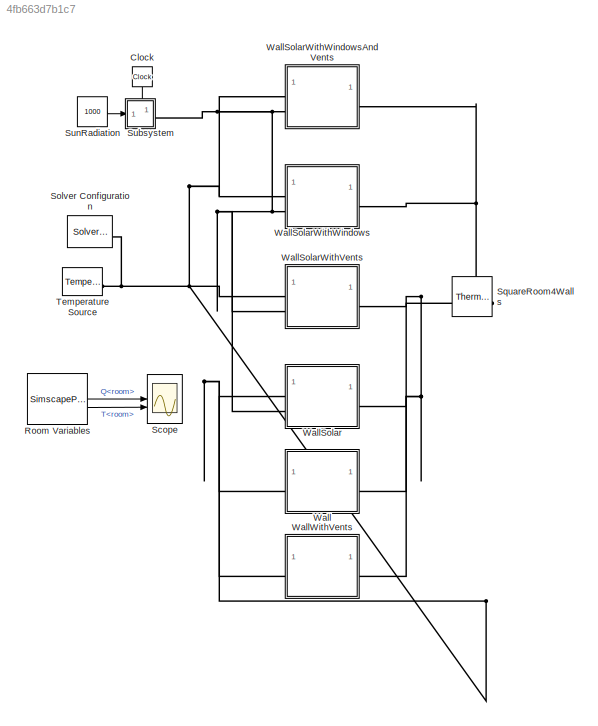
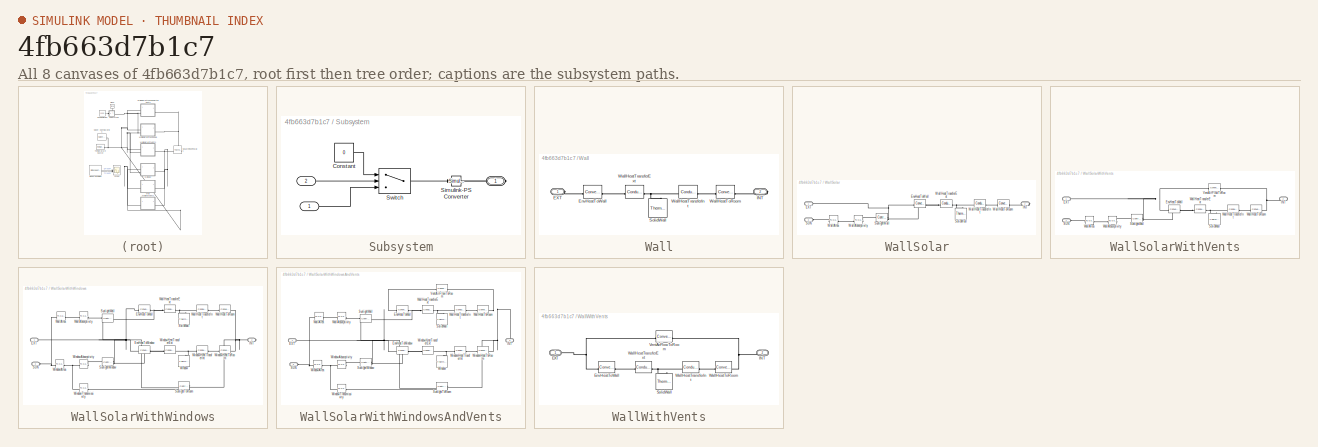
[diagram: thumbnail index - all 8 canvases of the model, root first then tree order]
MODEL slx_4fb663d7b1c7
KIND model
CONFIG AbsTol = 1e-3
CONFIG EnableMultiTasking = off
CONFIG FixedStep = 3600
CONFIG MaxStep = 3
CONFIG MinStep = auto
CONFIG PreLoadFcn = WallModelParams
CONFIG RelTol = 1e-3
CONFIG SampleTimeConstraint = Unconstrained
CONFIG SolverName = daessc
CONFIG StartTime = 0.0
CONFIG StopTime = 12*3600
BLOCK [Clock] Clock
  NameLocation = left
BLOCK [SimscapeProbe] Room Variables
  BoundBlock = 26
  Variables = {Q, T}
BLOCK [Scope] Scope
  Floating = off
  NumInputPorts = 2
  ScopeSpecificationString = Simulink.scopes.TimeScopeBlockCfg('CurrentConfiguration', extmgr.ConfigurationSet(extmgr.Configuration('Core','General UI',true),extmgr.Configuration('Core','Source UI',true),extmgr.Configuration('Sources','WiredSimulink',true),extmgr.Configuration('Visuals','Time Domain',true,'SerializedDisplays',{struct('MinYLimReal','-13999.51291','MaxYLimReal','14055.50143','YLabelReal','','MinYLimMag','   0.0...<+2184ch>
BLOCK [Reference] Solver Configuration  REF=nesl_utility/Solver
Configuration
  NameLocation = top
  SourceBlock = nesl_utility/Solver\nConfiguration
  SourceType = Solver\nConfiguration
BLOCK [Reference] SquareRoom4Walls  REF=fl_lib/Thermal/Thermal Elements/Thermal Mass
  SourceBlock = fl_lib/Thermal/Thermal Elements/Thermal Mass
  SourceType = Thermal Mass
BLOCK [SubSystem] Subsystem
  PortSchema = {"entries":[{"content":{"sides":[{"content":{"connectorIds":["In1"]},"type":"ConnectorPlacement.EquallySpacedRectSide","uuid":"3d46a215-694f-4d20-bc42-8059ad6c23bd"},{"content":{"connectorIds":["RConn1"],"side":"RIGHT"},"type":"ConnectorPlacement.EquallySpacedRectSide","uuid":"4734f55e-0044-4fb6-ae62-80969ebadacf"},{"content":{"connectorIds":["In2"],"side":"TOP"},"type":"ConnectorPlacement.Equally...<+247ch>
BLOCK [Inport] Subsystem/ 
  Port = 2
BLOCK [Inport] Subsystem/  
BLOCK [PMIOPort] Subsystem/   
  Side = Right
BLOCK [Constant] Subsystem/Constant
  Value = 0
BLOCK [Reference] Subsystem/Simulink-PS Converter  REF=nesl_utility/Simulink-PS
Converter
  SourceBlock = nesl_utility/Simulink-PS\nConverter
  SourceType = Simulink-PS\nConverter
BLOCK [Switch] Subsystem/Switch
  Criteria = u2 > Threshold
  InputSameDT = off
  SaturateOnIntegerOverflow = off
  Threshold = 8*3600
BLOCK [Constant] SunRadiation
  Value = 1000
BLOCK [Reference] Temperature Source  REF=fl_lib/Thermal/Thermal Sources/Temperature Source
  SourceBlock = fl_lib/Thermal/Thermal Sources/Temperature Source
  SourceType = Temperature Source
BLOCK [SubSystem] Wall
BLOCK [PMIOPort] Wall/EXT
  NameLocation = top
  Side = Left
BLOCK [Reference] Wall/EnvHeatToWall  REF=fl_lib/Thermal/Thermal Elements/Convective Heat
Transfer
  SourceBlock = fl_lib/Thermal/Thermal Elements/Convective Heat\nTransfer
  SourceType = Convective Heat\nTransfer
BLOCK [PMIOPort] Wall/INT
  NameLocation = top
  Port = 2
  Side = Right
BLOCK [Reference] Wall/SolidWall  REF=fl_lib/Thermal/Thermal Elements/Thermal Mass
  SourceBlock = fl_lib/Thermal/Thermal Elements/Thermal Mass
  SourceType = Thermal Mass
BLOCK [Reference] Wall/WallHeatToRoom  REF=fl_lib/Thermal/Thermal Elements/Convective Heat
Transfer
  SourceBlock = fl_lib/Thermal/Thermal Elements/Convective Heat\nTransfer
  SourceType = Convective Heat\nTransfer
BLOCK [Reference] Wall/WallHeatTransferExt  REF=fl_lib/Thermal/Thermal Elements/Conductive Heat
Transfer
  NameLocation = top
  SourceBlock = fl_lib/Thermal/Thermal Elements/Conductive Heat\nTransfer
  SourceType = Conductive Heat\nTransfer
BLOCK [Reference] Wall/WallHeatTransferInt  REF=fl_lib/Thermal/Thermal Elements/Conductive Heat
Transfer
  NameLocation = top
  SourceBlock = fl_lib/Thermal/Thermal Elements/Conductive Heat\nTransfer
  SourceType = Conductive Heat\nTransfer
BLOCK [SubSystem] WallSolar
BLOCK [PMIOPort] WallSolar/EXT
  NameLocation = top
  Side = Left
BLOCK [Reference] WallSolar/EnvHeatToWall  REF=fl_lib/Thermal/Thermal Elements/Convective Heat
Transfer
  SourceBlock = fl_lib/Thermal/Thermal Elements/Convective Heat\nTransfer
  SourceType = Convective Heat\nTransfer
BLOCK [PMIOPort] WallSolar/INT
  NameLocation = top
  Port = 2
  Side = Right
BLOCK [PMIOPort] WallSolar/SUN
  NameLocation = top
  Port = 3
  Side = Left
BLOCK [Reference] WallSolar/SolidWall  REF=fl_lib/Thermal/Thermal Elements/Thermal Mass
  SourceBlock = fl_lib/Thermal/Thermal Elements/Thermal Mass
  SourceType = Thermal Mass
BLOCK [Reference] WallSolar/SunlightWall  REF=fl_lib/Thermal/Thermal Sources/Controlled Heat Flow
Rate Source
  NameLocation = top
  SourceBlock = fl_lib/Thermal/Thermal Sources/Controlled Heat Flow\nRate Source
  SourceType = Controlled Heat Flow\nRate Source
BLOCK [Reference] WallSolar/WallAbsorptivity  REF=fl_lib/Physical Signals/Functions/PS Gain
  SourceBlock = fl_lib/Physical Signals/Functions/PS Gain
  SourceType = PS Gain
BLOCK [Reference] WallSolar/WallArea  REF=fl_lib/Physical Signals/Functions/PS Gain
  SourceBlock = fl_lib/Physical Signals/Functions/PS Gain
  SourceType = PS Gain
BLOCK [Reference] WallSolar/WallHeatToRoom  REF=fl_lib/Thermal/Thermal Elements/Convective Heat
Transfer
  SourceBlock = fl_lib/Thermal/Thermal Elements/Convective Heat\nTransfer
  SourceType = Convective Heat\nTransfer
BLOCK [Reference] WallSolar/WallHeatTransferExt  REF=fl_lib/Thermal/Thermal Elements/Conductive Heat
Transfer
  NameLocation = top
  SourceBlock = fl_lib/Thermal/Thermal Elements/Conductive Heat\nTransfer
  SourceType = Conductive Heat\nTransfer
BLOCK [Reference] WallSolar/WallHeatTransferInt  REF=fl_lib/Thermal/Thermal Elements/Conductive Heat
Transfer
  NameLocation = top
  SourceBlock = fl_lib/Thermal/Thermal Elements/Conductive Heat\nTransfer
  SourceType = Conductive Heat\nTransfer
BLOCK [SubSystem] WallSolarWithVents
BLOCK [PMIOPort] WallSolarWithVents/EXT
  NameLocation = top
  Side = Left
BLOCK [Reference] WallSolarWithVents/EnvHeatToWall  REF=fl_lib/Thermal/Thermal Elements/Convective Heat
Transfer
  SourceBlock = fl_lib/Thermal/Thermal Elements/Convective Heat\nTransfer
  SourceType = Convective Heat\nTransfer
BLOCK [PMIOPort] WallSolarWithVents/INT
  NameLocation = top
  Port = 2
  Side = Right
BLOCK [PMIOPort] WallSolarWithVents/SUN
  NameLocation = top
  Port = 3
  Side = Left
BLOCK [Reference] WallSolarWithVents/SolidWall  REF=fl_lib/Thermal/Thermal Elements/Thermal Mass
  SourceBlock = fl_lib/Thermal/Thermal Elements/Thermal Mass
  SourceType = Thermal Mass
BLOCK [Reference] WallSolarWithVents/SunlightWall  REF=fl_lib/Thermal/Thermal Sources/Controlled Heat Flow
Rate Source
  NameLocation = top
  SourceBlock = fl_lib/Thermal/Thermal Sources/Controlled Heat Flow\nRate Source
  SourceType = Controlled Heat Flow\nRate Source
BLOCK [Reference] WallSolarWithVents/VentAirFlowToRoom  REF=fl_lib/Thermal/Thermal Elements/Convective Heat
Transfer
  NameLocation = top
  SourceBlock = fl_lib/Thermal/Thermal Elements/Convective Heat\nTransfer
  SourceType = Convective Heat\nTransfer
BLOCK [Reference] WallSolarWithVents/WallAbsorptivity  REF=fl_lib/Physical Signals/Functions/PS Gain
  NameLocation = top
  SourceBlock = fl_lib/Physical Signals/Functions/PS Gain
  SourceType = PS Gain
BLOCK [Reference] WallSolarWithVents/WallArea  REF=fl_lib/Physical Signals/Functions/PS Gain
  NameLocation = top
  SourceBlock = fl_lib/Physical Signals/Functions/PS Gain
  SourceType = PS Gain
BLOCK [Reference] WallSolarWithVents/WallHeatToRoom  REF=fl_lib/Thermal/Thermal Elements/Convective Heat
Transfer
  SourceBlock = fl_lib/Thermal/Thermal Elements/Convective Heat\nTransfer
  SourceType = Convective Heat\nTransfer
BLOCK [Reference] WallSolarWithVents/WallHeatTransferExt  REF=fl_lib/Thermal/Thermal Elements/Conductive Heat
Transfer
  NameLocation = top
  SourceBlock = fl_lib/Thermal/Thermal Elements/Conductive Heat\nTransfer
  SourceType = Conductive Heat\nTransfer
BLOCK [Reference] WallSolarWithVents/WallHeatTransferInt  REF=fl_lib/Thermal/Thermal Elements/Conductive Heat
Transfer
  NameLocation = top
  SourceBlock = fl_lib/Thermal/Thermal Elements/Conductive Heat\nTransfer
  SourceType = Conductive Heat\nTransfer
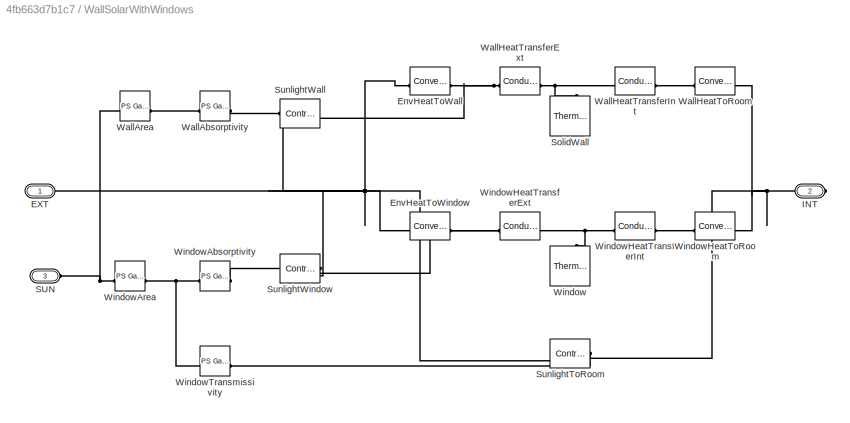
BLOCK [SubSystem] WallSolarWithWindows
BLOCK [PMIOPort] WallSolarWithWindows/EXT
  NameLocation = top
  Side = Left
BLOCK [Reference] WallSolarWithWindows/EnvHeatToWall  REF=fl_lib/Thermal/Thermal Elements/Convective Heat
Transfer
  SourceBlock = fl_lib/Thermal/Thermal Elements/Convective Heat\nTransfer
  SourceType = Convective Heat\nTransfer
BLOCK [Reference] WallSolarWithWindows/EnvHeatToWindow  REF=fl_lib/Thermal/Thermal Elements/Convective Heat
Transfer
  SourceBlock = fl_lib/Thermal/Thermal Elements/Convective Heat\nTransfer
  SourceType = Convective Heat\nTransfer
BLOCK [PMIOPort] WallSolarWithWindows/INT
  NameLocation = top
  Port = 2
  Side = Right
BLOCK [PMIOPort] WallSolarWithWindows/SUN
  NameLocation = top
  Port = 3
  Side = Left
BLOCK [Reference] WallSolarWithWindows/SolidWall  REF=fl_lib/Thermal/Thermal Elements/Thermal Mass
  SourceBlock = fl_lib/Thermal/Thermal Elements/Thermal Mass
  SourceType = Thermal Mass
BLOCK [Reference] WallSolarWithWindows/SunlightToRoom  REF=fl_lib/Thermal/Thermal Sources/Controlled Heat Flow
Rate Source
  NameLocation = top
  SourceBlock = fl_lib/Thermal/Thermal Sources/Controlled Heat Flow\nRate Source
  SourceType = Controlled Heat Flow\nRate Source
BLOCK [Reference] WallSolarWithWindows/SunlightWall  REF=fl_lib/Thermal/Thermal Sources/Controlled Heat Flow
Rate Source
  NameLocation = top
  SourceBlock = fl_lib/Thermal/Thermal Sources/Controlled Heat Flow\nRate Source
  SourceType = Controlled Heat Flow\nRate Source
BLOCK [Reference] WallSolarWithWindows/SunlightWindow  REF=fl_lib/Thermal/Thermal Sources/Controlled Heat Flow
Rate Source
  SourceBlock = fl_lib/Thermal/Thermal Sources/Controlled Heat Flow\nRate Source
  SourceType = Controlled Heat Flow\nRate Source
BLOCK [Reference] WallSolarWithWindows/WallAbsorptivity  REF=fl_lib/Physical Signals/Functions/PS Gain
  NameLocation = top
  SourceBlock = fl_lib/Physical Signals/Functions/PS Gain
  SourceType = PS Gain
BLOCK [Reference] WallSolarWithWindows/WallArea  REF=fl_lib/Physical Signals/Functions/PS Gain
  NameLocation = top
  SourceBlock = fl_lib/Physical Signals/Functions/PS Gain
  SourceType = PS Gain
BLOCK [Reference] WallSolarWithWindows/WallHeatToRoom  REF=fl_lib/Thermal/Thermal Elements/Convective Heat
Transfer
  SourceBlock = fl_lib/Thermal/Thermal Elements/Convective Heat\nTransfer
  SourceType = Convective Heat\nTransfer
BLOCK [Reference] WallSolarWithWindows/WallHeatTransferExt  REF=fl_lib/Thermal/Thermal Elements/Conductive Heat
Transfer
  NameLocation = top
  SourceBlock = fl_lib/Thermal/Thermal Elements/Conductive Heat\nTransfer
  SourceType = Conductive Heat\nTransfer
BLOCK [Reference] WallSolarWithWindows/WallHeatTransferInt  REF=fl_lib/Thermal/Thermal Elements/Conductive Heat
Transfer
  NameLocation = top
  SourceBlock = fl_lib/Thermal/Thermal Elements/Conductive Heat\nTransfer
  SourceType = Conductive Heat\nTransfer
BLOCK [Reference] WallSolarWithWindows/Window  REF=fl_lib/Thermal/Thermal Elements/Thermal Mass
  SourceBlock = fl_lib/Thermal/Thermal Elements/Thermal Mass
  SourceType = Thermal Mass
BLOCK [Reference] WallSolarWithWindows/WindowAbsorptivity  REF=fl_lib/Physical Signals/Functions/PS Gain
  NameLocation = top
  SourceBlock = fl_lib/Physical Signals/Functions/PS Gain
  SourceType = PS Gain
BLOCK [Reference] WallSolarWithWindows/WindowArea  REF=fl_lib/Physical Signals/Functions/PS Gain
  SourceBlock = fl_lib/Physical Signals/Functions/PS Gain
  SourceType = PS Gain
BLOCK [Reference] WallSolarWithWindows/WindowHeatToRoom  REF=fl_lib/Thermal/Thermal Elements/Convective Heat
Transfer
  SourceBlock = fl_lib/Thermal/Thermal Elements/Convective Heat\nTransfer
  SourceType = Convective Heat\nTransfer
BLOCK [Reference] WallSolarWithWindows/WindowHeatTransferExt  REF=fl_lib/Thermal/Thermal Elements/Conductive Heat
Transfer
  NameLocation = top
  SourceBlock = fl_lib/Thermal/Thermal Elements/Conductive Heat\nTransfer
  SourceType = Conductive Heat\nTransfer
BLOCK [Reference] WallSolarWithWindows/WindowHeatTransferInt  REF=fl_lib/Thermal/Thermal Elements/Conductive Heat
Transfer
  NameLocation = top
  SourceBlock = fl_lib/Thermal/Thermal Elements/Conductive Heat\nTransfer
  SourceType = Conductive Heat\nTransfer
BLOCK [Reference] WallSolarWithWindows/WindowTransmissivity  REF=fl_lib/Physical Signals/Functions/PS Gain
  SourceBlock = fl_lib/Physical Signals/Functions/PS Gain
  SourceType = PS Gain
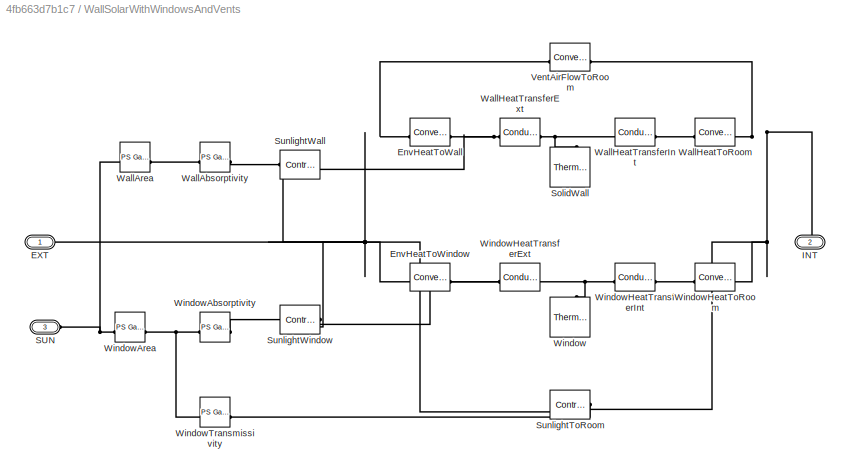
BLOCK [SubSystem] WallSolarWithWindowsAndVents
BLOCK [PMIOPort] WallSolarWithWindowsAndVents/EXT
  NameLocation = top
  Side = Left
BLOCK [Reference] WallSolarWithWindowsAndVents/EnvHeatToWall  REF=fl_lib/Thermal/Thermal Elements/Convective Heat
Transfer
  SourceBlock = fl_lib/Thermal/Thermal Elements/Convective Heat\nTransfer
  SourceType = Convective Heat\nTransfer
BLOCK [Reference] WallSolarWithWindowsAndVents/EnvHeatToWindow  REF=fl_lib/Thermal/Thermal Elements/Convective Heat
Transfer
  SourceBlock = fl_lib/Thermal/Thermal Elements/Convective Heat\nTransfer
  SourceType = Convective Heat\nTransfer
BLOCK [PMIOPort] WallSolarWithWindowsAndVents/INT
  NameLocation = top
  Port = 2
  Side = Right
BLOCK [PMIOPort] WallSolarWithWindowsAndVents/SUN
  NameLocation = top
  Port = 3
  Side = Left
BLOCK [Reference] WallSolarWithWindowsAndVents/SolidWall  REF=fl_lib/Thermal/Thermal Elements/Thermal Mass
  SourceBlock = fl_lib/Thermal/Thermal Elements/Thermal Mass
  SourceType = Thermal Mass
BLOCK [Reference] WallSolarWithWindowsAndVents/SunlightToRoom  REF=fl_lib/Thermal/Thermal Sources/Controlled Heat Flow
Rate Source
  NameLocation = top
  SourceBlock = fl_lib/Thermal/Thermal Sources/Controlled Heat Flow\nRate Source
  SourceType = Controlled Heat Flow\nRate Source
BLOCK [Reference] WallSolarWithWindowsAndVents/SunlightWall  REF=fl_lib/Thermal/Thermal Sources/Controlled Heat Flow
Rate Source
  NameLocation = top
  SourceBlock = fl_lib/Thermal/Thermal Sources/Controlled Heat Flow\nRate Source
  SourceType = Controlled Heat Flow\nRate Source
BLOCK [Reference] WallSolarWithWindowsAndVents/SunlightWindow  REF=fl_lib/Thermal/Thermal Sources/Controlled Heat Flow
Rate Source
  SourceBlock = fl_lib/Thermal/Thermal Sources/Controlled Heat Flow\nRate Source
  SourceType = Controlled Heat Flow\nRate Source
BLOCK [Reference] WallSolarWithWindowsAndVents/VentAirFlowToRoom  REF=fl_lib/Thermal/Thermal Elements/Convective Heat
Transfer
  NameLocation = top
  SourceBlock = fl_lib/Thermal/Thermal Elements/Convective Heat\nTransfer
  SourceType = Convective Heat\nTransfer
BLOCK [Reference] WallSolarWithWindowsAndVents/WallAbsorptivity  REF=fl_lib/Physical Signals/Functions/PS Gain
  NameLocation = top
  SourceBlock = fl_lib/Physical Signals/Functions/PS Gain
  SourceType = PS Gain
BLOCK [Reference] WallSolarWithWindowsAndVents/WallArea  REF=fl_lib/Physical Signals/Functions/PS Gain
  NameLocation = top
  SourceBlock = fl_lib/Physical Signals/Functions/PS Gain
  SourceType = PS Gain
BLOCK [Reference] WallSolarWithWindowsAndVents/WallHeatToRoom  REF=fl_lib/Thermal/Thermal Elements/Convective Heat
Transfer
  SourceBlock = fl_lib/Thermal/Thermal Elements/Convective Heat\nTransfer
  SourceType = Convective Heat\nTransfer
BLOCK [Reference] WallSolarWithWindowsAndVents/WallHeatTransferExt  REF=fl_lib/Thermal/Thermal Elements/Conductive Heat
Transfer
  NameLocation = top
  SourceBlock = fl_lib/Thermal/Thermal Elements/Conductive Heat\nTransfer
  SourceType = Conductive Heat\nTransfer
BLOCK [Reference] WallSolarWithWindowsAndVents/WallHeatTransferInt  REF=fl_lib/Thermal/Thermal Elements/Conductive Heat
Transfer
  NameLocation = top
  SourceBlock = fl_lib/Thermal/Thermal Elements/Conductive Heat\nTransfer
  SourceType = Conductive Heat\nTransfer
BLOCK [Reference] WallSolarWithWindowsAndVents/Window  REF=fl_lib/Thermal/Thermal Elements/Thermal Mass
  SourceBlock = fl_lib/Thermal/Thermal Elements/Thermal Mass
  SourceType = Thermal Mass
BLOCK [Reference] WallSolarWithWindowsAndVents/WindowAbsorptivity  REF=fl_lib/Physical Signals/Functions/PS Gain
  NameLocation = top
  SourceBlock = fl_lib/Physical Signals/Functions/PS Gain
  SourceType = PS Gain
BLOCK [Reference] WallSolarWithWindowsAndVents/WindowArea  REF=fl_lib/Physical Signals/Functions/PS Gain
  SourceBlock = fl_lib/Physical Signals/Functions/PS Gain
  SourceType = PS Gain
BLOCK [Reference] WallSolarWithWindowsAndVents/WindowHeatToRoom  REF=fl_lib/Thermal/Thermal Elements/Convective Heat
Transfer
  SourceBlock = fl_lib/Thermal/Thermal Elements/Convective Heat\nTransfer
  SourceType = Convective Heat\nTransfer
BLOCK [Reference] WallSolarWithWindowsAndVents/WindowHeatTransferExt  REF=fl_lib/Thermal/Thermal Elements/Conductive Heat
Transfer
  NameLocation = top
  SourceBlock = fl_lib/Thermal/Thermal Elements/Conductive Heat\nTransfer
  SourceType = Conductive Heat\nTransfer
BLOCK [Reference] WallSolarWithWindowsAndVents/WindowHeatTransferInt  REF=fl_lib/Thermal/Thermal Elements/Conductive Heat
Transfer
  NameLocation = top
  SourceBlock = fl_lib/Thermal/Thermal Elements/Conductive Heat\nTransfer
  SourceType = Conductive Heat\nTransfer
BLOCK [Reference] WallSolarWithWindowsAndVents/WindowTransmissivity  REF=fl_lib/Physical Signals/Functions/PS Gain
  SourceBlock = fl_lib/Physical Signals/Functions/PS Gain
  SourceType = PS Gain
BLOCK [SubSystem] WallWithVents
BLOCK [PMIOPort] WallWithVents/EXT
  NameLocation = top
  Side = Left
BLOCK [Reference] WallWithVents/EnvHeatToWall  REF=fl_lib/Thermal/Thermal Elements/Convective Heat
Transfer
  SourceBlock = fl_lib/Thermal/Thermal Elements/Convective Heat\nTransfer
  SourceType = Convective Heat\nTransfer
BLOCK [PMIOPort] WallWithVents/INT
  NameLocation = top
  Port = 2
  Side = Right
BLOCK [Reference] WallWithVents/SolidWall  REF=fl_lib/Thermal/Thermal Elements/Thermal Mass
  SourceBlock = fl_lib/Thermal/Thermal Elements/Thermal Mass
  SourceType = Thermal Mass
BLOCK [Reference] WallWithVents/VentAirFlowToRoom  REF=fl_lib/Thermal/Thermal Elements/Convective Heat
Transfer
  NameLocation = top
  SourceBlock = fl_lib/Thermal/Thermal Elements/Convective Heat\nTransfer
  SourceType = Convective Heat\nTransfer
BLOCK [Reference] WallWithVents/WallHeatToRoom  REF=fl_lib/Thermal/Thermal Elements/Convective Heat
Transfer
  SourceBlock = fl_lib/Thermal/Thermal Elements/Convective Heat\nTransfer
  SourceType = Convective Heat\nTransfer
BLOCK [Reference] WallWithVents/WallHeatTransferExt  REF=fl_lib/Thermal/Thermal Elements/Conductive Heat
Transfer
  NameLocation = top
  SourceBlock = fl_lib/Thermal/Thermal Elements/Conductive Heat\nTransfer
  SourceType = Conductive Heat\nTransfer
BLOCK [Reference] WallWithVents/WallHeatTransferInt  REF=fl_lib/Thermal/Thermal Elements/Conductive Heat
Transfer
  NameLocation = top
  SourceBlock = fl_lib/Thermal/Thermal Elements/Conductive Heat\nTransfer
  SourceType = Conductive Heat\nTransfer
LINE Clock:1 -> Subsystem:2
LINE Room Variables:1 -> Scope:1
LINE Room Variables:2 -> Scope:2
LINE Subsystem/  :1 -> Subsystem/Switch:3
LINE Subsystem/ :1 -> Subsystem/Switch:2
LINE Subsystem/Constant:1 -> Subsystem/Switch:1
LINE Subsystem/Switch:1 -> Subsystem/Simulink-PS Converter:1
LINE SunRadiation:1 -> Subsystem:1
PNET net1: Solver Configuration:RConn1 -- Temperature Source:LConn1 -- Wall:LConn1 -- WallSolar:LConn1 -- WallSolarWithVents:LConn1 -- WallSolarWithWindows:LConn1 -- WallSolarWithWindowsAndVents:LConn1 -- WallWithVents:LConn1
PNET net2: SquareRoom4Walls:LConn1 -- Wall:RConn1 -- WallSolar:RConn1 -- WallSolarWithVents:RConn1 -- WallSolarWithWindows:RConn1 -- WallSolarWithWindowsAndVents:RConn1 -- WallWithVents:RConn1
PLINE Subsystem/   :RConn1 -- Subsystem/Simulink-PS Converter:RConn1
PNET net3: Subsystem:RConn1 -- WallSolar:LConn2 -- WallSolarWithVents:LConn2 -- WallSolarWithWindows:LConn2 -- WallSolarWithWindowsAndVents:LConn2
PLINE Wall/EXT:RConn1 -- Wall/EnvHeatToWall:LConn1
PLINE Wall/EnvHeatToWall:RConn1 -- Wall/WallHeatTransferExt:LConn1
PLINE Wall/INT:RConn1 -- Wall/WallHeatToRoom:RConn1
PNET net4: Wall/SolidWall:LConn1 -- Wall/WallHeatTransferExt:RConn1 -- Wall/WallHeatTransferInt:LConn1
PLINE Wall/WallHeatToRoom:LConn1 -- Wall/WallHeatTransferInt:RConn1
PNET net5: WallSolar/EXT:RConn1 -- WallSolar/EnvHeatToWall:LConn1 -- WallSolar/SunlightWall:RConn2
PNET net6: WallSolar/EnvHeatToWall:RConn1 -- WallSolar/SunlightWall:LConn1 -- WallSolar/WallHeatTransferExt:LConn1
PLINE WallSolar/INT:RConn1 -- WallSolar/WallHeatToRoom:RConn1
PLINE WallSolar/SUN:RConn1 -- WallSolar/WallArea:LConn1
PNET net7: WallSolar/SolidWall:LConn1 -- WallSolar/WallHeatTransferExt:RConn1 -- WallSolar/WallHeatTransferInt:LConn1
PLINE WallSolar/SunlightWall:RConn1 -- WallSolar/WallAbsorptivity:RConn1
PLINE WallSolar/WallAbsorptivity:LConn1 -- WallSolar/WallArea:RConn1
PLINE WallSolar/WallHeatToRoom:LConn1 -- WallSolar/WallHeatTransferInt:RConn1
PNET net8: WallSolarWithVents/EXT:RConn1 -- WallSolarWithVents/EnvHeatToWall:LConn1 -- WallSolarWithVents/SunlightWall:RConn2 -- WallSolarWithVents/VentAirFlowToRoom:LConn1
PNET net9: WallSolarWithVents/EnvHeatToWall:RConn1 -- WallSolarWithVents/SunlightWall:LConn1 -- WallSolarWithVents/WallHeatTransferExt:LConn1
PNET net10: WallSolarWithVents/INT:RConn1 -- WallSolarWithVents/VentAirFlowToRoom:RConn1 -- WallSolarWithVents/WallHeatToRoom:RConn1
PLINE WallSolarWithVents/SUN:RConn1 -- WallSolarWithVents/WallArea:LConn1
PNET net11: WallSolarWithVents/SolidWall:LConn1 -- WallSolarWithVents/WallHeatTransferExt:RConn1 -- WallSolarWithVents/WallHeatTransferInt:LConn1
PLINE WallSolarWithVents/SunlightWall:RConn1 -- WallSolarWithVents/WallAbsorptivity:RConn1
PLINE WallSolarWithVents/WallAbsorptivity:LConn1 -- WallSolarWithVents/WallArea:RConn1
PLINE WallSolarWithVents/WallHeatToRoom:LConn1 -- WallSolarWithVents/WallHeatTransferInt:RConn1
PNET net12: WallSolarWithWindows/EXT:RConn1 -- WallSolarWithWindows/EnvHeatToWall:LConn1 -- WallSolarWithWindows/EnvHeatToWindow:LConn1 -- WallSolarWithWindows/SunlightToRoom:RConn2 -- WallSolarWithWindows/SunlightWall:RConn2 -- WallSolarWithWindows/SunlightWindow:RConn2
PNET net13: WallSolarWithWindows/EnvHeatToWall:RConn1 -- WallSolarWithWindows/SunlightWall:LConn1 -- WallSolarWithWindows/WallHeatTransferExt:LConn1
PNET net14: WallSolarWithWindows/EnvHeatToWindow:RConn1 -- WallSolarWithWindows/SunlightWindow:LConn1 -- WallSolarWithWindows/WindowHeatTransferExt:LConn1
PNET net15: WallSolarWithWindows/INT:RConn1 -- WallSolarWithWindows/SunlightToRoom:LConn1 -- WallSolarWithWindows/WallHeatToRoom:RConn1 -- WallSolarWithWindows/WindowHeatToRoom:RConn1
PNET net16: WallSolarWithWindows/SUN:RConn1 -- WallSolarWithWindows/WallArea:LConn1 -- WallSolarWithWindows/WindowArea:LConn1
PNET net17: WallSolarWithWindows/SolidWall:LConn1 -- WallSolarWithWindows/WallHeatTransferExt:RConn1 -- WallSolarWithWindows/WallHeatTransferInt:LConn1
PLINE WallSolarWithWindows/SunlightToRoom:RConn1 -- WallSolarWithWindows/WindowTransmissivity:RConn1
PLINE WallSolarWithWindows/SunlightWall:RConn1 -- WallSolarWithWindows/WallAbsorptivity:RConn1
PLINE WallSolarWithWindows/SunlightWindow:RConn1 -- WallSolarWithWindows/WindowAbsorptivity:RConn1
PLINE WallSolarWithWindows/WallAbsorptivity:LConn1 -- WallSolarWithWindows/WallArea:RConn1
PLINE WallSolarWithWindows/WallHeatToRoom:LConn1 -- WallSolarWithWindows/WallHeatTransferInt:RConn1
PNET net18: WallSolarWithWindows/Window:LConn1 -- WallSolarWithWindows/WindowHeatTransferExt:RConn1 -- WallSolarWithWindows/WindowHeatTransferInt:LConn1
PNET net19: WallSolarWithWindows/WindowAbsorptivity:LConn1 -- WallSolarWithWindows/WindowArea:RConn1 -- WallSolarWithWindows/WindowTransmissivity:LConn1
PLINE WallSolarWithWindows/WindowHeatToRoom:LConn1 -- WallSolarWithWindows/WindowHeatTransferInt:RConn1
PNET net20: WallSolarWithWindowsAndVents/EXT:RConn1 -- WallSolarWithWindowsAndVents/EnvHeatToWall:LConn1 -- WallSolarWithWindowsAndVents/EnvHeatToWindow:LConn1 -- WallSolarWithWindowsAndVents/SunlightToRoom:RConn2 -- WallSolarWithWindowsAndVents/SunlightWall:RConn2 -- WallSolarWithWindowsAndVents/SunlightWindow:RConn2 -- WallSolarWithWindowsAndVents/VentAirFlowToRoom:LConn1
PNET net21: WallSolarWithWindowsAndVents/EnvHeatToWall:RConn1 -- WallSolarWithWindowsAndVents/SunlightWall:LConn1 -- WallSolarWithWindowsAndVents/WallHeatTransferExt:LConn1
PNET net22: WallSolarWithWindowsAndVents/EnvHeatToWindow:RConn1 -- WallSolarWithWindowsAndVents/SunlightWindow:LConn1 -- WallSolarWithWindowsAndVents/WindowHeatTransferExt:LConn1
PNET net23: WallSolarWithWindowsAndVents/INT:RConn1 -- WallSolarWithWindowsAndVents/SunlightToRoom:LConn1 -- WallSolarWithWindowsAndVents/VentAirFlowToRoom:RConn1 -- WallSolarWithWindowsAndVents/WallHeatToRoom:RConn1 -- WallSolarWithWindowsAndVents/WindowHeatToRoom:RConn1
PNET net24: WallSolarWithWindowsAndVents/SUN:RConn1 -- WallSolarWithWindowsAndVents/WallArea:LConn1 -- WallSolarWithWindowsAndVents/WindowArea:LConn1
PNET net25: WallSolarWithWindowsAndVents/SolidWall:LConn1 -- WallSolarWithWindowsAndVents/WallHeatTransferExt:RConn1 -- WallSolarWithWindowsAndVents/WallHeatTransferInt:LConn1
PLINE WallSolarWithWindowsAndVents/SunlightToRoom:RConn1 -- WallSolarWithWindowsAndVents/WindowTransmissivity:RConn1
PLINE WallSolarWithWindowsAndVents/SunlightWall:RConn1 -- WallSolarWithWindowsAndVents/WallAbsorptivity:RConn1
PLINE WallSolarWithWindowsAndVents/SunlightWindow:RConn1 -- WallSolarWithWindowsAndVents/WindowAbsorptivity:RConn1
PLINE WallSolarWithWindowsAndVents/WallAbsorptivity:LConn1 -- WallSolarWithWindowsAndVents/WallArea:RConn1
PLINE WallSolarWithWindowsAndVents/WallHeatToRoom:LConn1 -- WallSolarWithWindowsAndVents/WallHeatTransferInt:RConn1
PNET net26: WallSolarWithWindowsAndVents/Window:LConn1 -- WallSolarWithWindowsAndVents/WindowHeatTransferExt:RConn1 -- WallSolarWithWindowsAndVents/WindowHeatTransferInt:LConn1
PNET net27: WallSolarWithWindowsAndVents/WindowAbsorptivity:LConn1 -- WallSolarWithWindowsAndVents/WindowArea:RConn1 -- WallSolarWithWindowsAndVents/WindowTransmissivity:LConn1
PLINE WallSolarWithWindowsAndVents/WindowHeatToRoom:LConn1 -- WallSolarWithWindowsAndVents/WindowHeatTransferInt:RConn1
PNET net28: WallWithVents/EXT:RConn1 -- WallWithVents/EnvHeatToWall:LConn1 -- WallWithVents/VentAirFlowToRoom:LConn1
PLINE WallWithVents/EnvHeatToWall:RConn1 -- WallWithVents/WallHeatTransferExt:LConn1
PNET net29: WallWithVents/INT:RConn1 -- WallWithVents/VentAirFlowToRoom:RConn1 -- WallWithVents/WallHeatToRoom:RConn1
PNET net30: WallWithVents/SolidWall:LConn1 -- WallWithVents/WallHeatTransferExt:RConn1 -- WallWithVents/WallHeatTransferInt:LConn1
PLINE WallWithVents/WallHeatToRoom:LConn1 -- WallWithVents/WallHeatTransferInt:RConn1
note: PNET lines group multi-terminal physical nets as a canonical sorted terminal list (undirected conserving connections); 2-terminal nets keep the pairwise PLINE form
